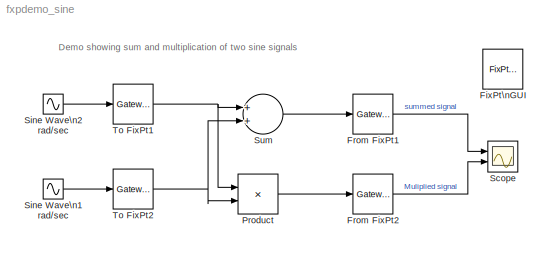
MODEL fxpdemo_sine
KIND model
CONFIG AbsTol = 1e-6
CONFIG FixedStep = .01
CONFIG MaxStep = 0.01
CONFIG MinStep = auto
CONFIG RelTol = 1e-3
CONFIG Solver = FixedStepDiscrete
CONFIG SolverMode = SingleTasking
CONFIG StartTime = 0.0
CONFIG StopTime = inf
BLOCK [Reference] FixPt\nGUI  REF=fixpt_lib_3p1/FixPt\nGUI
  Ports = []
  SourceBlock = fixpt_lib_3p1/FixPt\nGUI
  SourceType = Fixed-Point GUI
BLOCK [Reference] From FixPt1  REF=fixpt_lib_4/Data Type/Gateway Out  (lib defined in mdl_ef9dacb0d1df)
  DoSatur = off
  OutBuiltInType = double
  OutRealWorld = Real World Value
  Ports = [1, 1]
  RndMeth = Floor
  SourceBlock = fixpt_lib_4/Data Type/Gateway Out
  SourceType = Fixed-Point Gateway Out
BLOCK [Reference] From FixPt2  REF=fixpt_lib_4/Data Type/Gateway Out  (lib defined in mdl_ef9dacb0d1df)
  DoSatur = off
  OutBuiltInType = double
  OutRealWorld = Real World Value
  Ports = [1, 1]
  RndMeth = Floor
  SourceBlock = fixpt_lib_4/Data Type/Gateway Out
  SourceType = Fixed-Point Gateway Out
BLOCK [Product] Product
  InputSameDT = off
  OutDataTypeMode = Specify via dialog
  OutScaling = 2^-8
  Ports = [2, 1]
  SaturateOnIntegerOverflow = off
  ShowAdditionalParam = on
BLOCK [Scope] Scope
  DataFormat = StructureWithTime
  NumInputPorts = 2
  Ports = [2]
  SaveToWorkspace = on
  TickLabels = on
  TimeRange = 10
  YMax = 2~1
  YMin = -2.5~-1
BLOCK [Sin] Sine Wave\n1 rad//sec
  SampleTime = 0
  SineType = Time based
BLOCK [Sin] Sine Wave\n2 rad//sec
  Frequency = 2
  SampleTime = 0
  SineType = Time based
BLOCK [Sum] Sum
  InputSameDT = off
  OutDataTypeMode = Specify via dialog
  OutScaling = 2^-2
  Ports = [2, 1]
  SaturateOnIntegerOverflow = off
  ShowAdditionalParam = on
BLOCK [Reference] To FixPt1  REF=fixpt_lib_4/Data Type/Gateway In  (lib defined in mdl_ef9dacb0d1df)
  DoSatur = off
  InRealWorld = Real World Value
  LockScale = off
  OutDataType = sfix(16)
  OutScaling = 2^-7
  OutputDataTypeScalingMode = Specify via dialog
  Ports = [1, 1]
  RndMeth = Floor
  SourceBlock = fixpt_lib_4/Data Type/Gateway In
  SourceType = Fixed-Point Gateway In
BLOCK [Reference] To FixPt2  REF=fixpt_lib_4/Data Type/Gateway In  (lib defined in mdl_ef9dacb0d1df)
  DoSatur = off
  InRealWorld = Real World Value
  LockScale = off
  OutDataType = sfix(16)
  OutScaling = 2^-6
  OutputDataTypeScalingMode = Specify via dialog
  Ports = [1, 1]
  RndMeth = Floor
  SourceBlock = fixpt_lib_4/Data Type/Gateway In
  SourceType = Fixed-Point Gateway In
ANNOTATION (root): Demo showing sum and multiplication of two sine signals
LINE From FixPt1:1 -> Scope:1
LINE From FixPt2:1 -> Scope:2
LINE Product:1 -> From FixPt2:1
LINE Sine Wave\n1 rad//sec:1 -> To FixPt2:1
LINE Sine Wave\n2 rad//sec:1 -> To FixPt1:1
LINE Sum:1 -> From FixPt1:1
NET To FixPt1:1 -> Product:1, Sum:1
NET To FixPt2:1 -> Product:2, Sum:2
note: NET lines group one-source signal fan-out (src -> all destinations, sorted); 1:1 wires keep LINE
